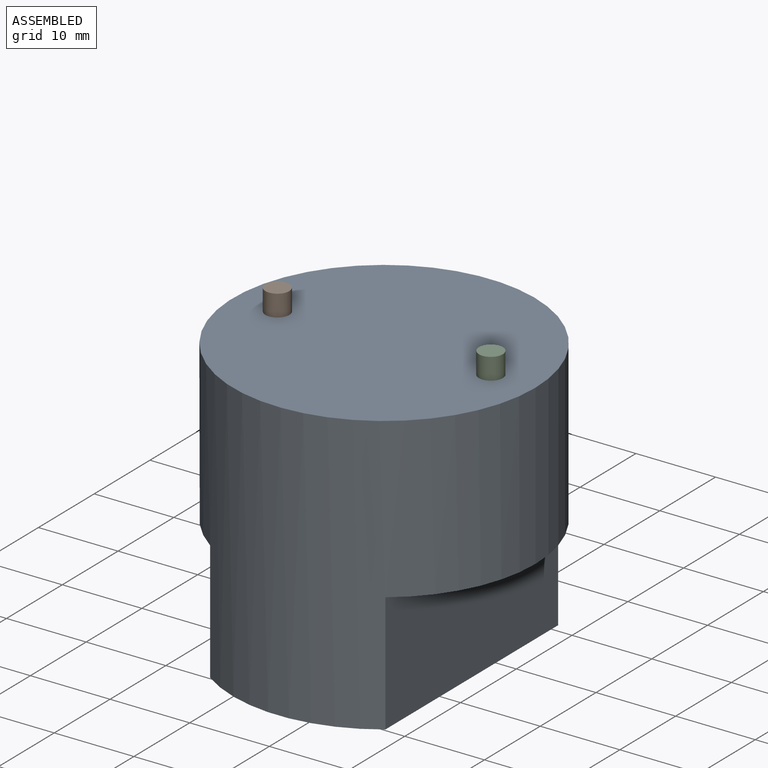
[diagram: assembled view]
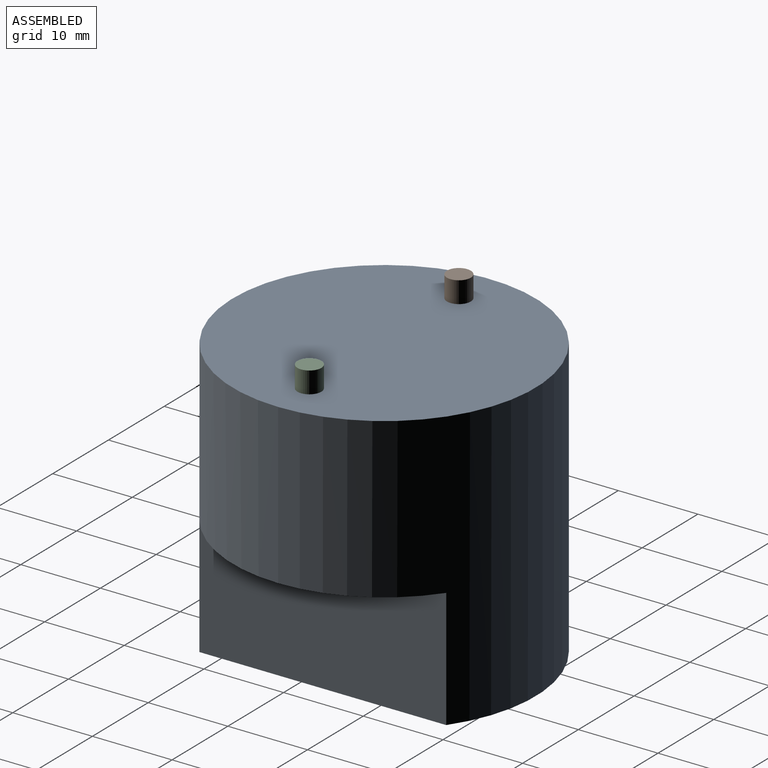
[diagram: assembled view, second angle]
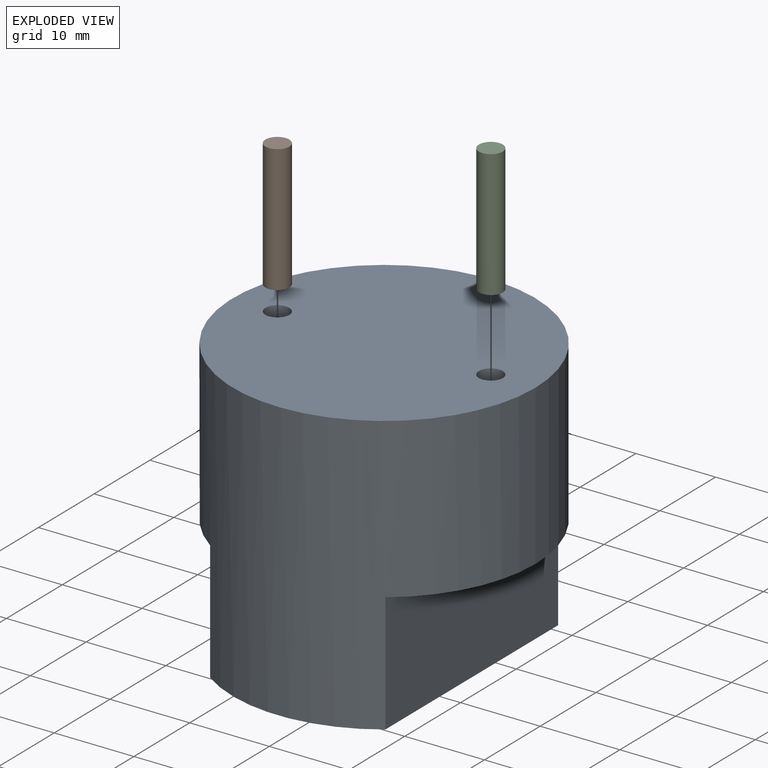
[diagram: exploded view]
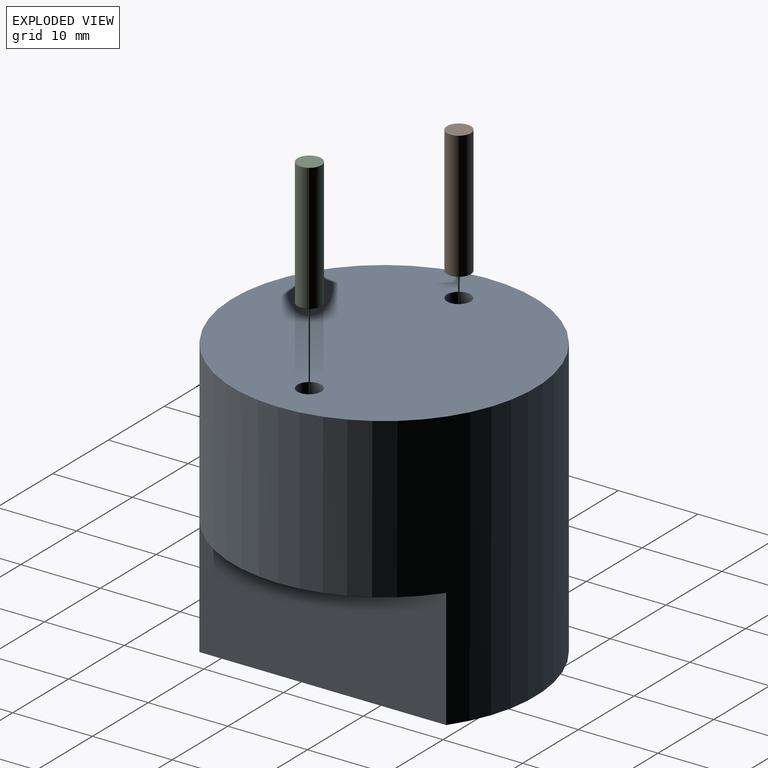
[diagram: exploded view, second angle]
ASSEMBLY  parts=3 mates=2
PART A: 11 faces, bbox 38x38x35 mm
  f0: cylinder r=19mm len=38mm, axis (0,0,-1), area 3091.5mm2, adj f1,f2,f7,f8,f9,f10
  f1: plane 38x22mm, normal (0,0,1), area 786.6mm2, adj f0,f8,f10
  f2: plane 38x38mm, normal (0,0,-1), area 1120mm2, adj f0,f3,f5
  f3: cylinder r=1.5mm len=13.3mm, axis (0,0,-1), area 125.3mm2, adj f2,f4
  f4: plane 3x3mm, normal (0,0,-1), area 7.1mm2, adj f3
  f5: cylinder r=1.5mm len=13.3mm, axis (0,0,-1), area 125.3mm2, adj f2,f6
  f6: plane 3x3mm, normal (0,0,-1), area 7.1mm2, adj f5
  f7: plane 30.98x8mm, normal (0,0,1), area 173.8mm2, adj f0,f8
  f8: plane 30.98x15mm, normal (1,0,0), area 464.8mm2, adj f0,f1,f7
  f9: plane 30.98x8mm, normal (0,0,1), area 173.8mm2, adj f0,f10
  f10: plane 30.98x15mm, normal (-1,0,0), area 464.8mm2, adj f0,f1,f9
PART B: 3 faces, bbox 3x3x16 mm
  f0: cylinder r=1.5mm len=16mm, axis (0,0,-1), area 150.8mm2, adj f1,f2
  f1: plane 3x3mm, normal (0,0,1), area 7.1mm2, adj f0
  f2: plane 3x3mm, normal (0,0,-1), area 7.1mm2, adj f0
PART C: same geometry as B
PLACE A rot(axis=(1,0,0),180deg) t=(-12.37,-6.03,7.97)mm
PLACE B t=(-25.77,-6.03,-5.33)mm
PLACE C rot(axis=(1,0,0),180deg) t=(1.03,-6.03,10.67)mm
MATE fastened C.f0 <-> A.f5  axis (0,0,-1) through (1.03,-6.03,-5.33)mm
MATE fastened A.f3 <-> B.f0  axis (0,0,1) through (-25.77,-6.03,-5.33)mm
